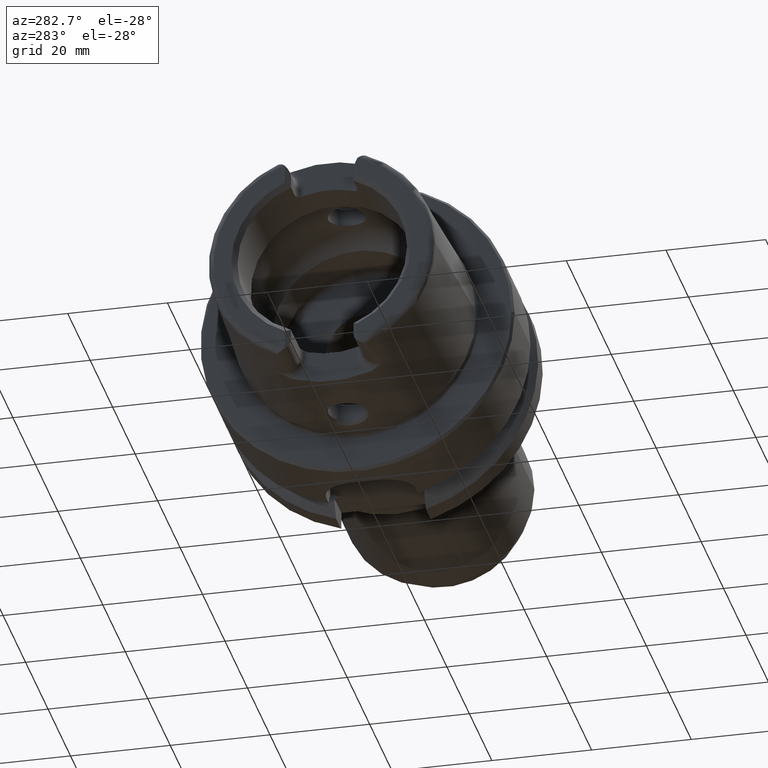
[diagram: clean part render]
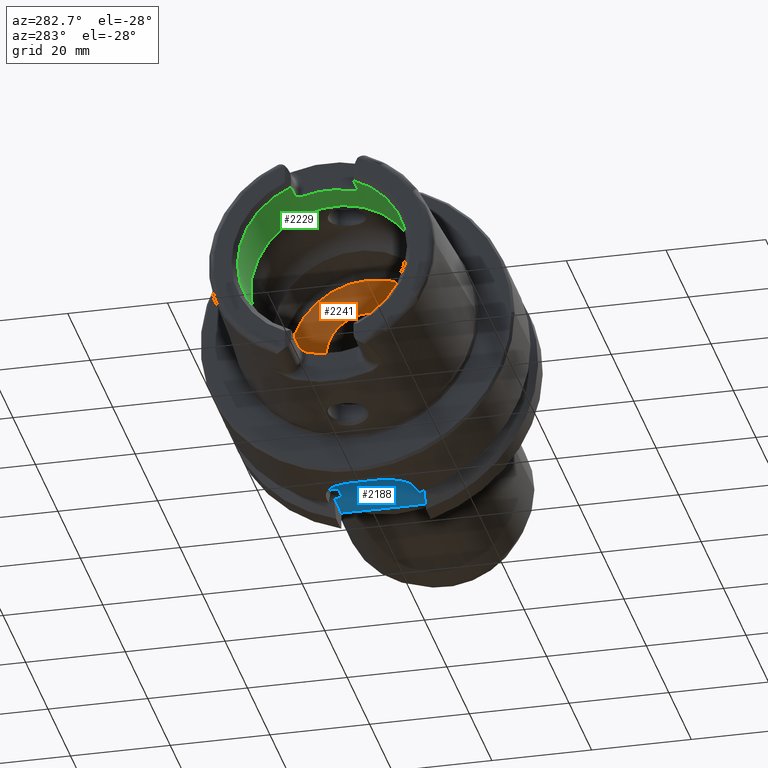
[diagram: same view with three faces highlighted in distinct colors, each labeled with its STEP entity id]
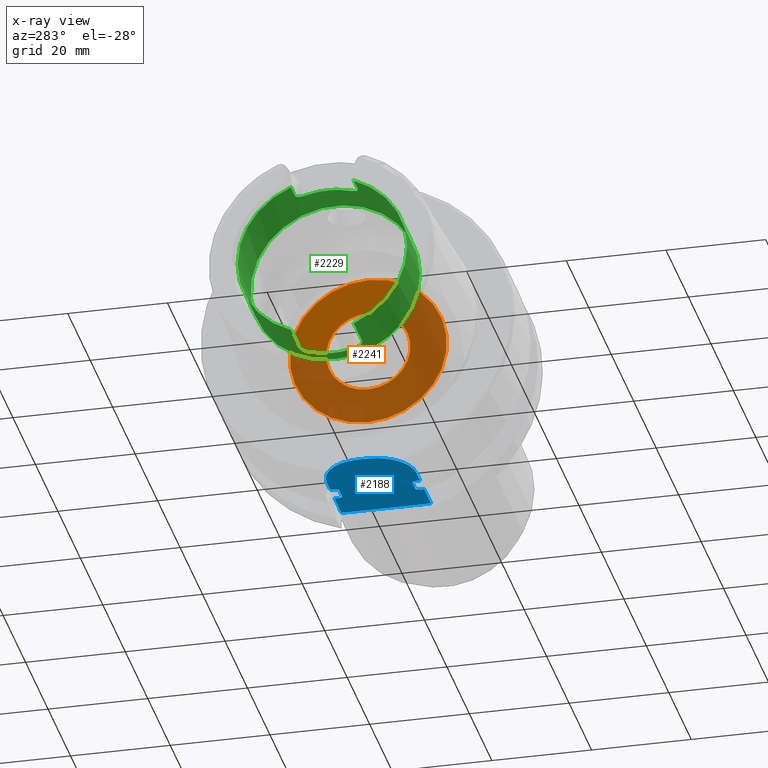
[diagram: x-ray of the same camera — body ghosted, the three highlighted faces saturated]
A machine part, auxiliary view with three faces highlighted in distinct colors.
The next image is the same camera in x-ray (body ghosted, the three faces saturated) — at least one of them is partly hidden behind the body in this view.
Their STEP definitions:

[orange] entity #2241 — the highlighted planar face has unit normal (1, 0, 0).
#141=FACE_BOUND('',#495,.T.);
#186=PLANE('',#2520);
#349=FACE_OUTER_BOUND('',#494,.T.);
#494=EDGE_LOOP('',(#2055));
#495=EDGE_LOOP('',(#2056));
#851=CIRCLE('',#2513,8.458734);
#855=CIRCLE('',#2521,15.75);
#1076=VERTEX_POINT('',#4884);
#1080=VERTEX_POINT('',#4898);
#1403=EDGE_CURVE('',#1076,#1076,#851,.T.);
#1409=EDGE_CURVE('',#1080,#1080,#855,.T.);
#2055=ORIENTED_EDGE('',*,*,#1409,.T.);
#2056=ORIENTED_EDGE('',*,*,#1403,.T.);
#2241=ADVANCED_FACE('',(#349,#141),#186,.F.);
#2513=AXIS2_PLACEMENT_3D('',#4885,#3130,#3131);
#2520=AXIS2_PLACEMENT_3D('',#4897,#3146,#3147);
#2521=AXIS2_PLACEMENT_3D('',#4899,#3148,#3149);
#3130=DIRECTION('center_axis',(1.,0.,0.));
#3131=DIRECTION('ref_axis',(0.,0.,1.));
#3146=DIRECTION('center_axis',(1.,0.,0.));
#3147=DIRECTION('ref_axis',(0.,0.,-1.));
#3148=DIRECTION('center_axis',(-1.,0.,0.));
#3149=DIRECTION('ref_axis',(0.,0.,1.));
#4884=CARTESIAN_POINT('',(10.,-1.03589615179389E-15,-8.458734));
#4885=CARTESIAN_POINT('Origin',(10.,0.,0.));
#4897=CARTESIAN_POINT('Origin',(10.,15.75,0.));
#4898=CARTESIAN_POINT('',(10.,-1.92881870865708E-15,-15.75));
#4899=CARTESIAN_POINT('Origin',(10.,0.,0.));

[blue] entity #2188 — the highlighted planar face has unit normal (0, 0, 1).
#77=B_SPLINE_CURVE_WITH_KNOTS('',3,(#4540,#4541,#4542,#4543,#4544,#4545,
#4546,#4547,#4548,#4549),.UNSPECIFIED.,.F.,.F.,(4,2,2,2,4),(0.15835931245442,
0.289228035148659,0.316691561230896,0.323545183976989,0.32878569277627),
 .UNSPECIFIED.);
#78=B_SPLINE_CURVE_WITH_KNOTS('',3,(#4554,#4555,#4556,#4557,#4558,#4559,
#4560,#4561,#4562,#4563),.UNSPECIFIED.,.F.,.F.,(4,2,2,2,4),(0.328785692776271,
0.334026201575552,0.340879824321645,0.368343350403883,0.499212073098121),
 .UNSPECIFIED.);
#79=B_SPLINE_CURVE_WITH_KNOTS('',3,(#4566,#4567,#4568,#4569,#4570,#4571,
#4572,#4573,#4574,#4575),.UNSPECIFIED.,.F.,.F.,(4,2,2,2,4),(0.158359312454421,
0.289228035148659,0.316691561230897,0.323545183976989,0.328785692776271),
 .UNSPECIFIED.);
#80=B_SPLINE_CURVE_WITH_KNOTS('',3,(#4577,#4578,#4579,#4580,#4581,#4582,
#4583,#4584,#4585,#4586),.UNSPECIFIED.,.F.,.F.,(4,2,2,2,4),(0.328785692776271,
0.334026201575553,0.340879824321645,0.368343350403883,0.499212073098122),
 .UNSPECIFIED.);
#166=PLANE('',#2426);
#296=FACE_OUTER_BOUND('',#438,.T.);
#438=EDGE_LOOP('',(#1785,#1786,#1787,#1788,#1789,#1790,#1791,#1792,#1793,
#1794,#1795,#1796,#1797,#1798));
#516=LINE('',#3261,#628);
#577=LINE('',#4509,#689);
#581=LINE('',#4522,#693);
#584=LINE('',#4530,#696);
#586=LINE('',#4550,#698);
#587=LINE('',#4552,#699);
#588=LINE('',#4565,#700);
#589=LINE('',#4587,#701);
#628=VECTOR('',#2610,10.);
#689=VECTOR('',#2909,10.);
#693=VECTOR('',#2919,10.);
#696=VECTOR('',#2928,10.);
#698=VECTOR('',#2932,10.);
#699=VECTOR('',#2933,10.);
#700=VECTOR('',#2934,10.);
#701=VECTOR('',#2935,10.);
#812=CIRCLE('',#2421,8.);
#813=CIRCLE('',#2424,8.);
#889=VERTEX_POINT('',#3258);
#890=VERTEX_POINT('',#3260);
#1027=VERTEX_POINT('',#4502);
#1029=VERTEX_POINT('',#4508);
#1031=VERTEX_POINT('',#4517);
#1032=VERTEX_POINT('',#4521);
#1033=VERTEX_POINT('',#4525);
#1034=VERTEX_POINT('',#4529);
#1036=VERTEX_POINT('',#4538);
#1037=VERTEX_POINT('',#4539);
#1038=VERTEX_POINT('',#4551);
#1039=VERTEX_POINT('',#4553);
#1040=VERTEX_POINT('',#4564);
#1041=VERTEX_POINT('',#4576);
#1116=EDGE_CURVE('',#889,#890,#516,.T.);
#1302=EDGE_CURVE('',#1027,#1029,#577,.T.);
#1306=EDGE_CURVE('',#1029,#1031,#812,.T.);
#1308=EDGE_CURVE('',#1031,#1032,#581,.T.);
#1310=EDGE_CURVE('',#1032,#1033,#813,.T.);
#1312=EDGE_CURVE('',#1033,#1034,#584,.T.);
#1315=EDGE_CURVE('',#1036,#1037,#77,.T.);
#1316=EDGE_CURVE('',#890,#1036,#586,.T.);
#1317=EDGE_CURVE('',#1038,#889,#587,.T.);
#1318=EDGE_CURVE('',#1039,#1038,#78,.T.);
#1319=EDGE_CURVE('',#1040,#1039,#588,.T.);
#1320=EDGE_CURVE('',#1034,#1040,#79,.T.);
#1321=EDGE_CURVE('',#1041,#1027,#80,.T.);
#1322=EDGE_CURVE('',#1037,#1041,#589,.T.);
#1785=ORIENTED_EDGE('',*,*,#1315,.F.);
#1786=ORIENTED_EDGE('',*,*,#1316,.F.);
#1787=ORIENTED_EDGE('',*,*,#1116,.F.);
#1788=ORIENTED_EDGE('',*,*,#1317,.F.);
#1789=ORIENTED_EDGE('',*,*,#1318,.F.);
#1790=ORIENTED_EDGE('',*,*,#1319,.F.);
#1791=ORIENTED_EDGE('',*,*,#1320,.F.);
#1792=ORIENTED_EDGE('',*,*,#1312,.F.);
#1793=ORIENTED_EDGE('',*,*,#1310,.F.);
#1794=ORIENTED_EDGE('',*,*,#1308,.F.);
#1795=ORIENTED_EDGE('',*,*,#1306,.F.);
#1796=ORIENTED_EDGE('',*,*,#1302,.F.);
#1797=ORIENTED_EDGE('',*,*,#1321,.F.);
#1798=ORIENTED_EDGE('',*,*,#1322,.F.);
#2188=ADVANCED_FACE('',(#296),#166,.F.);
#2421=AXIS2_PLACEMENT_3D('',#4518,#2914,#2915);
#2424=AXIS2_PLACEMENT_3D('',#4526,#2923,#2924);
#2426=AXIS2_PLACEMENT_3D('',#4537,#2930,#2931);
#2610=DIRECTION('',(0.,1.,0.));
#2909=DIRECTION('',(-1.,2.56205313375036E-16,0.));
#2914=DIRECTION('center_axis',(0.,0.,1.));
#2915=DIRECTION('ref_axis',(0.,1.,0.));
#2919=DIRECTION('',(0.,-1.,0.));
#2923=DIRECTION('center_axis',(0.,0.,1.));
#2924=DIRECTION('ref_axis',(-1.,-2.42861286636753E-16,0.));
#2928=DIRECTION('',(1.,-2.56205313375036E-16,0.));
#2930=DIRECTION('center_axis',(0.,0.,1.));
#2931=DIRECTION('ref_axis',(1.,0.,0.));
#2932=DIRECTION('',(-1.,2.56205313375036E-16,0.));
#2933=DIRECTION('',(1.,-2.56205313375036E-16,0.));
#2934=DIRECTION('',(1.,0.,0.));
#2935=DIRECTION('',(-1.,0.,0.));
#3258=CARTESIAN_POINT('',(26.,-9.,-26.5));
#3260=CARTESIAN_POINT('',(26.,9.,-26.5));
#3261=CARTESIAN_POINT('',(26.,1.94289029309402E-15,-26.5));
#4502=CARTESIAN_POINT('',(16.1251794866842,9.,-26.5));
#4508=CARTESIAN_POINT('',(13.,9.00000000000001,-26.5));
#4509=CARTESIAN_POINT('',(26.,9.,-26.5));
#4517=CARTESIAN_POINT('',(5.,1.,-26.5));
#4518=CARTESIAN_POINT('Origin',(13.,1.,-26.5));
#4521=CARTESIAN_POINT('',(5.,-0.999999999999999,-26.5));
#4522=CARTESIAN_POINT('',(5.,1.,-26.5));
#4525=CARTESIAN_POINT('',(13.,-9.,-26.5));
#4526=CARTESIAN_POINT('Origin',(13.,-0.999999999999997,-26.5));
#4529=CARTESIAN_POINT('',(16.1251794866842,-9.,-26.5));
#4530=CARTESIAN_POINT('',(13.,-9.,-26.5));
#4537=CARTESIAN_POINT('Origin',(15.5,3.88578058618805E-15,-26.5));
#4538=CARTESIAN_POINT('',(19.8748205133158,9.,-26.5));
#4539=CARTESIAN_POINT('',(19.375,7.34846922834952,-26.5));
#4540=CARTESIAN_POINT('Ctrl Pts',(19.8748205133158,9.,-26.5));
#4541=CARTESIAN_POINT('Ctrl Pts',(19.87101758765,8.55877260788573,-26.5));
#4542=CARTESIAN_POINT('Ctrl Pts',(19.8180665965116,8.04136347440828,-26.5));
#4543=CARTESIAN_POINT('Ctrl Pts',(19.6093543510711,7.5566112023157,-26.5));
#4544=CARTESIAN_POINT('Ctrl Pts',(19.5588509980644,7.45905436978721,-26.5));
#4545=CARTESIAN_POINT('Ctrl Pts',(19.4729704495238,7.38349170057082,-26.5));
#4546=CARTESIAN_POINT('Ctrl Pts',(19.4503005178313,7.36807649661538,-26.5));
#4547=CARTESIAN_POINT('Ctrl Pts',(19.412961605144,7.35287762173868,-26.5));
#4548=CARTESIAN_POINT('Ctrl Pts',(19.3924683626643,7.34846922834952,-26.5));
#4549=CARTESIAN_POINT('Ctrl Pts',(19.375,7.34846922834952,-26.5));
#4550=CARTESIAN_POINT('',(26.,9.,-26.5));
#4551=CARTESIAN_POINT('',(19.8748205133158,-9.,-26.5));
#4552=CARTESIAN_POINT('',(13.,-9.,-26.5));
#4553=CARTESIAN_POINT('',(19.375,-7.34846922834952,-26.5));
#4554=CARTESIAN_POINT('Ctrl Pts',(19.375,-7.34846922834952,-26.5));
#4555=CARTESIAN_POINT('Ctrl Pts',(19.3924683626643,-7.34846922834952,-26.5));
#4556=CARTESIAN_POINT('Ctrl Pts',(19.412961605144,-7.35287762173868,-26.5));
#4557=CARTESIAN_POINT('Ctrl Pts',(19.4503005178313,-7.36807649661538,-26.5));
#4558=CARTESIAN_POINT('Ctrl Pts',(19.4729704495238,-7.38349170057082,-26.5));
#4559=CARTESIAN_POINT('Ctrl Pts',(19.5588509980644,-7.45905436978721,-26.5));
#4560=CARTESIAN_POINT('Ctrl Pts',(19.6093543510711,-7.5566112023157,-26.5));
#4561=CARTESIAN_POINT('Ctrl Pts',(19.8180665965116,-8.04136347440828,-26.5));
#4562=CARTESIAN_POINT('Ctrl Pts',(19.87101758765,-8.55877260788573,-26.5));
#4563=CARTESIAN_POINT('Ctrl Pts',(19.8748205133158,-9.,-26.5));
#4564=CARTESIAN_POINT('',(16.625,-7.34846922834952,-26.5));
#4565=CARTESIAN_POINT('',(18.,-7.34846922834952,-26.5));
#4566=CARTESIAN_POINT('Ctrl Pts',(16.1251794866842,-9.,-26.5));
#4567=CARTESIAN_POINT('Ctrl Pts',(16.12898241235,-8.55877260788573,-26.5));
#4568=CARTESIAN_POINT('Ctrl Pts',(16.1819334034884,-8.04136347440828,-26.5));
#4569=CARTESIAN_POINT('Ctrl Pts',(16.3906456489289,-7.5566112023157,-26.5));
#4570=CARTESIAN_POINT('Ctrl Pts',(16.4411490019356,-7.4590543697872,-26.5));
#4571=CARTESIAN_POINT('Ctrl Pts',(16.5270295504762,-7.38349170057081,-26.5));
#4572=CARTESIAN_POINT('Ctrl Pts',(16.5496994821687,-7.36807649661538,-26.5));
#4573=CARTESIAN_POINT('Ctrl Pts',(16.587038394856,-7.35287762173868,-26.5));
#4574=CARTESIAN_POINT('Ctrl Pts',(16.6075316373357,-7.34846922834952,-26.5));
#4575=CARTESIAN_POINT('Ctrl Pts',(16.625,-7.34846922834952,-26.5));
#4576=CARTESIAN_POINT('',(16.625,7.34846922834952,-26.5));
#4577=CARTESIAN_POINT('Ctrl Pts',(16.625,7.34846922834952,-26.5));
#4578=CARTESIAN_POINT('Ctrl Pts',(16.6075316373357,7.34846922834952,-26.5));
#4579=CARTESIAN_POINT('Ctrl Pts',(16.587038394856,7.35287762173868,-26.5));
#4580=CARTESIAN_POINT('Ctrl Pts',(16.5496994821687,7.36807649661538,-26.5));
#4581=CARTESIAN_POINT('Ctrl Pts',(16.5270295504762,7.38349170057081,-26.5));
#4582=CARTESIAN_POINT('Ctrl Pts',(16.4411490019356,7.4590543697872,-26.5));
#4583=CARTESIAN_POINT('Ctrl Pts',(16.3906456489289,7.5566112023157,-26.5));
#4584=CARTESIAN_POINT('Ctrl Pts',(16.1819334034884,8.04136347440828,-26.5));
#4585=CARTESIAN_POINT('Ctrl Pts',(16.1289824123499,8.55877260788574,-26.5));
#4586=CARTESIAN_POINT('Ctrl Pts',(16.1251794866842,9.,-26.5));
#4587=CARTESIAN_POINT('',(18.,7.34846922834952,-26.5));

[green] entity #2229 — the highlighted cylindrical surface (bore or boss wall) has radius 17 mm, axis along (-1, 0, 0).
#94=B_SPLINE_CURVE_WITH_KNOTS('',3,(#4784,#4785,#4786,#4787,#4788,#4789,
#4790,#4791,#4792,#4793),.UNSPECIFIED.,.F.,.F.,(4,2,2,2,4),(0.229569660485746,
0.289239803007022,0.348909945528297,0.405407845050218,0.46190574457214),
 .UNSPECIFIED.);
#95=B_SPLINE_CURVE_WITH_KNOTS('',3,(#4802,#4803,#4804,#4805,#4806,#4807,
#4808,#4809,#4810,#4811),.UNSPECIFIED.,.F.,.F.,(4,2,2,2,4),(0.46190574457214,
0.519239917776744,0.576574090981348,0.635410522815223,0.694246954649097),
 .UNSPECIFIED.);
#96=B_SPLINE_CURVE_WITH_KNOTS('',3,(#4820,#4821,#4822,#4823,#4824,#4825,
#4826,#4827,#4828,#4829),.UNSPECIFIED.,.F.,.F.,(4,2,2,2,4),(0.461905744572139,
0.518403644094061,0.574901543615982,0.634571686137257,0.694241828658533),
 .UNSPECIFIED.);
#97=B_SPLINE_CURVE_WITH_KNOTS('',3,(#4843,#4844,#4845,#4846,#4847,#4848,
#4849,#4850,#4851,#4852),.UNSPECIFIED.,.F.,.F.,(4,2,2,2,4),(0.229569660485747,
0.289239803007022,0.348909945528297,0.405407845050218,0.46190574457214),
 .UNSPECIFIED.);
#226=CYLINDRICAL_SURFACE('',#2495,17.);
#337=FACE_OUTER_BOUND('',#480,.T.);
#480=EDGE_LOOP('',(#1993,#1994,#1995,#1996,#1997,#1998,#1999,#2000,#2001,
#2002,#2003,#2004,#2005,#2006,#2007,#2008,#2009));
#533=LINE('',#3620,#645);
#539=LINE('',#3638,#651);
#545=LINE('',#3695,#657);
#549=LINE('',#3763,#661);
#611=LINE('',#4867,#723);
#645=VECTOR('',#2721,10.);
#651=VECTOR('',#2733,10.);
#657=VECTOR('',#2753,10.);
#661=VECTOR('',#2775,10.);
#723=VECTOR('',#3097,17.);
#836=CIRCLE('',#2483,17.);
#841=CIRCLE('',#2494,17.);
#842=CIRCLE('',#2496,17.);
#843=CIRCLE('',#2497,17.);
#844=CIRCLE('',#2498,17.);
#845=CIRCLE('',#2499,17.);
#846=CIRCLE('',#2500,17.);
#923=VERTEX_POINT('',#3571);
#930=VERTEX_POINT('',#3619);
#933=VERTEX_POINT('',#3626);
#936=VERTEX_POINT('',#3636);
#944=VERTEX_POINT('',#3683);
#947=VERTEX_POINT('',#3693);
#954=VERTEX_POINT('',#3728);
#959=VERTEX_POINT('',#3762);
#1066=VERTEX_POINT('',#4782);
#1068=VERTEX_POINT('',#4801);
#1070=VERTEX_POINT('',#4819);
#1071=VERTEX_POINT('',#4836);
#1073=VERTEX_POINT('',#4863);
#1074=VERTEX_POINT('',#4864);
#1075=VERTEX_POINT('',#4866);
#1170=EDGE_CURVE('',#930,#923,#533,.T.);
#1178=EDGE_CURVE('',#933,#936,#539,.T.);
#1191=EDGE_CURVE('',#944,#947,#545,.T.);
#1205=EDGE_CURVE('',#959,#954,#549,.T.);
#1371=EDGE_CURVE('',#1066,#947,#94,.T.);
#1375=EDGE_CURVE('',#959,#1068,#95,.T.);
#1380=EDGE_CURVE('',#930,#1070,#96,.T.);
#1384=EDGE_CURVE('',#1071,#1070,#836,.T.);
#1388=EDGE_CURVE('',#1071,#936,#97,.T.);
#1392=EDGE_CURVE('',#1066,#1068,#841,.T.);
#1393=EDGE_CURVE('',#1073,#1074,#842,.T.);
#1394=EDGE_CURVE('',#1073,#1075,#611,.T.);
#1395=EDGE_CURVE('',#944,#1075,#843,.T.);
#1396=EDGE_CURVE('',#933,#954,#844,.T.);
#1397=EDGE_CURVE('',#1075,#923,#845,.T.);
#1398=EDGE_CURVE('',#1074,#1073,#846,.T.);
#1993=ORIENTED_EDGE('',*,*,#1393,.F.);
#1994=ORIENTED_EDGE('',*,*,#1394,.T.);
#1995=ORIENTED_EDGE('',*,*,#1395,.F.);
#1996=ORIENTED_EDGE('',*,*,#1191,.T.);
#1997=ORIENTED_EDGE('',*,*,#1371,.F.);
#1998=ORIENTED_EDGE('',*,*,#1392,.T.);
#1999=ORIENTED_EDGE('',*,*,#1375,.F.);
#2000=ORIENTED_EDGE('',*,*,#1205,.T.);
#2001=ORIENTED_EDGE('',*,*,#1396,.F.);
#2002=ORIENTED_EDGE('',*,*,#1178,.T.);
#2003=ORIENTED_EDGE('',*,*,#1388,.F.);
#2004=ORIENTED_EDGE('',*,*,#1384,.T.);
#2005=ORIENTED_EDGE('',*,*,#1380,.F.);
#2006=ORIENTED_EDGE('',*,*,#1170,.T.);
#2007=ORIENTED_EDGE('',*,*,#1397,.F.);
#2008=ORIENTED_EDGE('',*,*,#1394,.F.);
#2009=ORIENTED_EDGE('',*,*,#1398,.F.);
#2229=ADVANCED_FACE('',(#337),#226,.F.);
#2483=AXIS2_PLACEMENT_3D('',#4837,#3067,#3068);
#2494=AXIS2_PLACEMENT_3D('',#4861,#3091,#3092);
#2495=AXIS2_PLACEMENT_3D('',#4862,#3093,#3094);
#2496=AXIS2_PLACEMENT_3D('',#4865,#3095,#3096);
#2497=AXIS2_PLACEMENT_3D('',#4868,#3098,#3099);
#2498=AXIS2_PLACEMENT_3D('',#4869,#3100,#3101);
#2499=AXIS2_PLACEMENT_3D('',#4870,#3102,#3103);
#2500=AXIS2_PLACEMENT_3D('',#4871,#3104,#3105);
#2721=DIRECTION('',(-1.,0.,0.));
#2733=DIRECTION('',(1.,0.,0.));
#2753=DIRECTION('',(1.,0.,0.));
#2775=DIRECTION('',(-1.,0.,0.));
#3067=DIRECTION('center_axis',(-1.,0.,0.));
#3068=DIRECTION('ref_axis',(0.,1.,0.));
#3091=DIRECTION('center_axis',(-1.,0.,0.));
#3092=DIRECTION('ref_axis',(0.,1.,0.));
#3093=DIRECTION('center_axis',(-1.,0.,0.));
#3094=DIRECTION('ref_axis',(0.,1.,0.));
#3095=DIRECTION('center_axis',(-1.,0.,0.));
#3096=DIRECTION('ref_axis',(0.,0.,1.));
#3097=DIRECTION('',(-1.,0.,0.));
#3098=DIRECTION('center_axis',(1.,0.,0.));
#3099=DIRECTION('ref_axis',(0.,-1.,0.));
#3100=DIRECTION('center_axis',(1.,0.,0.));
#3101=DIRECTION('ref_axis',(0.,-1.,0.));
#3102=DIRECTION('center_axis',(1.,0.,0.));
#3103=DIRECTION('ref_axis',(0.,-1.,0.));
#3104=DIRECTION('center_axis',(-1.,0.,0.));
#3105=DIRECTION('ref_axis',(0.,0.,1.));
#3571=CARTESIAN_POINT('',(-31.,-6.27,-15.8014904360317));
#3619=CARTESIAN_POINT('',(-23.5,-6.27,-15.8014904360317));
#3620=CARTESIAN_POINT('',(-25.6423502691896,-6.27,-15.8014904360317));
#3626=CARTESIAN_POINT('',(-31.,6.27,-15.8014904360317));
#3636=CARTESIAN_POINT('',(-23.5,6.27,-15.8014904360317));
#3638=CARTESIAN_POINT('',(-25.6423502691896,6.27,-15.8014904360317));
#3683=CARTESIAN_POINT('',(-31.,-6.27,15.8014904360317));
#3693=CARTESIAN_POINT('',(-27.5,-6.27,15.8014904360317));
#3695=CARTESIAN_POINT('',(-25.6423502691896,-6.27,15.8014904360317));
#3728=CARTESIAN_POINT('',(-31.,6.27,15.8014904360317));
#3762=CARTESIAN_POINT('',(-27.5,6.27,15.8014904360317));
#3763=CARTESIAN_POINT('',(-25.6423502691896,6.27,15.8014904360317));
#4782=CARTESIAN_POINT('',(-26.,-4.77,16.3170800083839));
#4784=CARTESIAN_POINT('Ctrl Pts',(-26.,-4.77,16.3170800083839));
#4785=CARTESIAN_POINT('Ctrl Pts',(-26.,-4.96091029208457,16.2612708750845));
#4786=CARTESIAN_POINT('Ctrl Pts',(-26.0385404635846,-5.16378617408596,16.1979610859593));
#4787=CARTESIAN_POINT('Ctrl Pts',(-26.1950909803916,-5.53690543536203,16.0742436586733));
#4788=CARTESIAN_POINT('Ctrl Pts',(-26.3130861154278,-5.70721093092864,16.01400454532));
#4789=CARTESIAN_POINT('Ctrl Pts',(-26.5811791540138,-5.96960590306613,15.9179857910505));
#4790=CARTESIAN_POINT('Ctrl Pts',(-26.7467155703026,-6.082078486584,15.8749745356799));
#4791=CARTESIAN_POINT('Ctrl Pts',(-27.1119229195206,-6.23232125085234,15.8165946761251));
#4792=CARTESIAN_POINT('Ctrl Pts',(-27.3116736682603,-6.27,15.8014904360317));
#4793=CARTESIAN_POINT('Ctrl Pts',(-27.5,-6.27,15.8014904360317));
#4801=CARTESIAN_POINT('',(-26.,4.77,16.3170800083839));
#4802=CARTESIAN_POINT('Ctrl Pts',(-27.5,6.27,15.8014904360317));
#4803=CARTESIAN_POINT('Ctrl Pts',(-27.308886089318,6.27,15.8014904360317));
#4804=CARTESIAN_POINT('Ctrl Pts',(-27.1064099842243,6.23121026569193,15.8170435837256));
#4805=CARTESIAN_POINT('Ctrl Pts',(-26.7371019784685,6.07691823919465,15.8769617281184));
#4806=CARTESIAN_POINT('Ctrl Pts',(-26.5701870418163,5.96150738537594,15.9210500039306));
#4807=CARTESIAN_POINT('Ctrl Pts',(-26.3050641818979,5.69638452545756,16.017853695422));
#4808=CARTESIAN_POINT('Ctrl Pts',(-26.1900212186221,5.52750941197086,16.0774506535614));
#4809=CARTESIAN_POINT('Ctrl Pts',(-26.0374824299787,5.15846789211413,16.1996292802954));
#4810=CARTESIAN_POINT('Ctrl Pts',(-26.,4.95824289522375,16.2620506397863));
#4811=CARTESIAN_POINT('Ctrl Pts',(-26.,4.77,16.3170800083839));
#4819=CARTESIAN_POINT('',(-22.,-4.77,-16.3170800083839));
#4820=CARTESIAN_POINT('Ctrl Pts',(-23.5,-6.27,-15.8014904360317));
#4821=CARTESIAN_POINT('Ctrl Pts',(-23.3116736682603,-6.27,-15.8014904360317));
#4822=CARTESIAN_POINT('Ctrl Pts',(-23.1119229195206,-6.23232125085234,-15.8165946761251));
#4823=CARTESIAN_POINT('Ctrl Pts',(-22.7467155703026,-6.082078486584,-15.8749745356799));
#4824=CARTESIAN_POINT('Ctrl Pts',(-22.5811791540138,-5.96960590306613,-15.9179857910505));
#4825=CARTESIAN_POINT('Ctrl Pts',(-22.3130861154278,-5.70721093092864,-16.01400454532));
#4826=CARTESIAN_POINT('Ctrl Pts',(-22.1950909803916,-5.53690543536204,-16.0742436586733));
#4827=CARTESIAN_POINT('Ctrl Pts',(-22.0385404635846,-5.16378617408596,-16.1979610859593));
#4828=CARTESIAN_POINT('Ctrl Pts',(-22.,-4.96091029208457,-16.2612708750845));
#4829=CARTESIAN_POINT('Ctrl Pts',(-22.,-4.77,-16.3170800083839));
#4836=CARTESIAN_POINT('',(-22.,4.77,-16.3170800083839));
#4837=CARTESIAN_POINT('Origin',(-22.,0.,0.));
#4843=CARTESIAN_POINT('Ctrl Pts',(-22.,4.77,-16.3170800083839));
#4844=CARTESIAN_POINT('Ctrl Pts',(-22.,4.96091029208457,-16.2612708750845));
#4845=CARTESIAN_POINT('Ctrl Pts',(-22.0385404635846,5.16378617408596,-16.1979610859593));
#4846=CARTESIAN_POINT('Ctrl Pts',(-22.1950909803916,5.53690543536204,-16.0742436586733));
#4847=CARTESIAN_POINT('Ctrl Pts',(-22.3130861154278,5.70721093092864,-16.01400454532));
#4848=CARTESIAN_POINT('Ctrl Pts',(-22.5811791540138,5.96960590306613,-15.9179857910505));
#4849=CARTESIAN_POINT('Ctrl Pts',(-22.7467155703026,6.082078486584,-15.8749745356799));
#4850=CARTESIAN_POINT('Ctrl Pts',(-23.1119229195206,6.23232125085234,-15.8165946761251));
#4851=CARTESIAN_POINT('Ctrl Pts',(-23.3116736682603,6.27,-15.8014904360317));
#4852=CARTESIAN_POINT('Ctrl Pts',(-23.5,6.27,-15.8014904360317));
#4861=CARTESIAN_POINT('Origin',(-26.,0.,0.));
#4862=CARTESIAN_POINT('Origin',(-25.6423502691896,0.,0.));
#4863=CARTESIAN_POINT('',(-19.2847005383793,-17.,2.0818995585505E-15));
#4864=CARTESIAN_POINT('',(-19.2847005383793,-2.0818995585505E-15,-17.));
#4865=CARTESIAN_POINT('Origin',(-19.2847005383793,0.,0.));
#4866=CARTESIAN_POINT('',(-31.,-17.,2.0818995585505E-15));
#4867=CARTESIAN_POINT('',(-25.6423502691896,-17.,2.0818995585505E-15));
#4868=CARTESIAN_POINT('Origin',(-31.,0.,0.));
#4869=CARTESIAN_POINT('Origin',(-31.,0.,0.));
#4870=CARTESIAN_POINT('Origin',(-31.,0.,0.));
#4871=CARTESIAN_POINT('Origin',(-19.2847005383793,0.,0.));